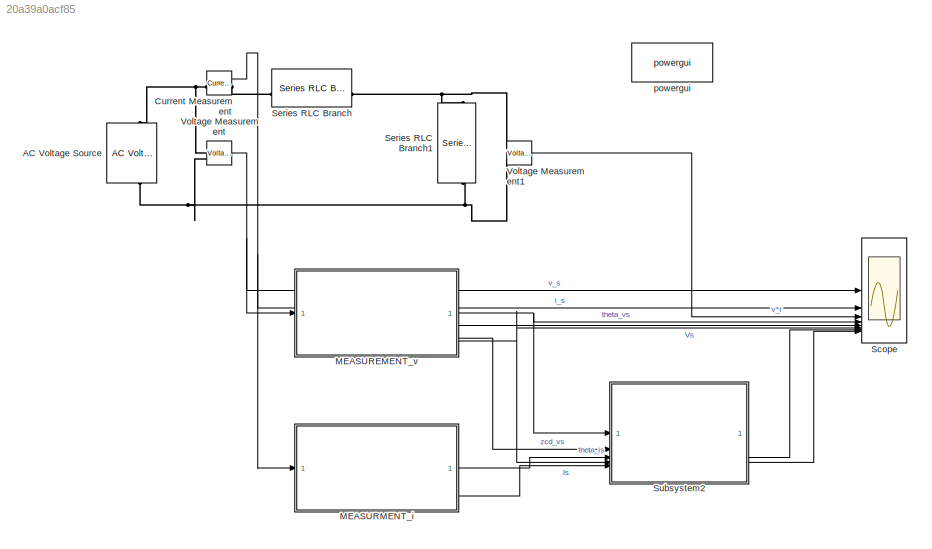
MODEL slx_20a39a0acf85
KIND model
CONFIG AbsTol = auto
CONFIG EnableMultiTasking = off
CONFIG FixedStep = auto
CONFIG MaxStep = auto
CONFIG MinStep = auto
CONFIG RelTol = 1e-3
CONFIG SampleTimeConstraint = Unconstrained
CONFIG SolverName = ode23t
CONFIG StartTime = 0.0
CONFIG StopTime = 0.08
BLOCK [Reference] AC Voltage Source  REF=spsACVoltageSourceLib/AC Voltage Source
  LibrarySourceBlock = sps_lib/Sources/AC Voltage Source
  SourceBlock = spsACVoltageSourceLib/AC Voltage Source
  SourceType = AC Voltage Source
BLOCK [Reference] Current Measurement  REF=spsCurrentMeasurementLib/Current Measurement
  LibrarySourceBlock = sps_lib/Sensors and Measurements/Current Measurement
  SourceBlock = spsCurrentMeasurementLib/Current Measurement
  SourceType = Current Measurement
  UserDataPersistent = on
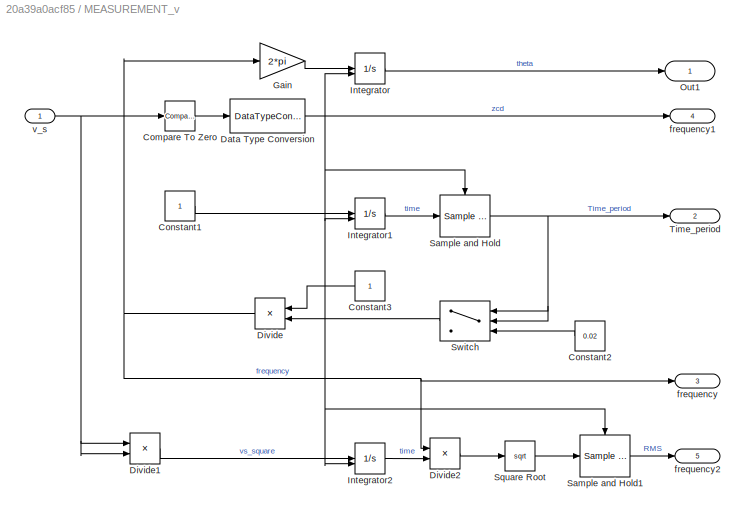
BLOCK [SubSystem] MEASUREMENT_v
BLOCK [Reference] MEASUREMENT_v/Compare To Zero  REF=simulink/Logic and Bit
Operations/Compare
To Zero
  SourceBlock = simulink/Logic and Bit\nOperations/Compare\nTo Zero
  SourceType = Compare To Zero
BLOCK [Constant] MEASUREMENT_v/Constant1
BLOCK [Constant] MEASUREMENT_v/Constant2
  NameLocation = top
  Value = 0.02
BLOCK [Constant] MEASUREMENT_v/Constant3
  NameLocation = top
BLOCK [DataTypeConversion] MEASUREMENT_v/Data Type Conversion
  RndMeth = Floor
  SaturateOnIntegerOverflow = off
BLOCK [Product] MEASUREMENT_v/Divide
  Inputs = */
  NameLocation = top
BLOCK [Product] MEASUREMENT_v/Divide1
  Inputs = **
BLOCK [Product] MEASUREMENT_v/Divide2
  Inputs = **
BLOCK [Gain] MEASUREMENT_v/Gain
  Gain = 2*pi
BLOCK [Integrator] MEASUREMENT_v/Integrator
  ExternalReset = rising
BLOCK [Integrator] MEASUREMENT_v/Integrator1
  ExternalReset = rising
BLOCK [Integrator] MEASUREMENT_v/Integrator2
  ExternalReset = rising
BLOCK [Outport] MEASUREMENT_v/Out1
  IconDisplay = Port number and signal name
BLOCK [Reference] MEASUREMENT_v/Sample and Hold  REF=dspsigops/Sample
and Hold
  LibrarySourceBlock = dsphdlsupportsigops/Sample\nand Hold
  SourceBlock = dspsigops/Sample\nand Hold
  SourceType = Sample and Hold
BLOCK [Reference] MEASUREMENT_v/Sample and Hold1  REF=dspsigops/Sample
and Hold
  LibrarySourceBlock = dsphdlsupportsigops/Sample\nand Hold
  SourceBlock = dspsigops/Sample\nand Hold
  SourceType = Sample and Hold
BLOCK [Sqrt] MEASUREMENT_v/Square Root
BLOCK [Switch] MEASUREMENT_v/Switch
  Criteria = u2 > Threshold
  InputSameDT = off
  NameLocation = top
  SaturateOnIntegerOverflow = off
BLOCK [Outport] MEASUREMENT_v/Time_period
  IconDisplay = Port number and signal name
  Port = 2
BLOCK [Outport] MEASUREMENT_v/frequency
  IconDisplay = Port number and signal name
  Port = 3
BLOCK [Outport] MEASUREMENT_v/frequency1
  IconDisplay = Port number and signal name
  Port = 4
BLOCK [Outport] MEASUREMENT_v/frequency2
  IconDisplay = Port number and signal name
  Port = 5
BLOCK [Inport] MEASUREMENT_v/v_s
  IconDisplay = Port number and signal name
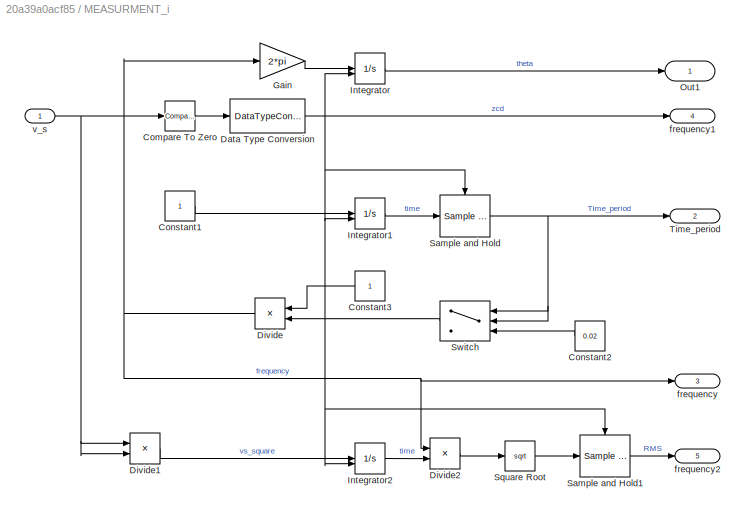
BLOCK [SubSystem] MEASURMENT_i
BLOCK [Reference] MEASURMENT_i/Compare To Zero  REF=simulink/Logic and Bit
Operations/Compare
To Zero
  SourceBlock = simulink/Logic and Bit\nOperations/Compare\nTo Zero
  SourceType = Compare To Zero
BLOCK [Constant] MEASURMENT_i/Constant1
BLOCK [Constant] MEASURMENT_i/Constant2
  NameLocation = top
  Value = 0.02
BLOCK [Constant] MEASURMENT_i/Constant3
  NameLocation = top
BLOCK [DataTypeConversion] MEASURMENT_i/Data Type Conversion
  RndMeth = Floor
  SaturateOnIntegerOverflow = off
BLOCK [Product] MEASURMENT_i/Divide
  Inputs = */
  NameLocation = top
BLOCK [Product] MEASURMENT_i/Divide1
  Inputs = **
BLOCK [Product] MEASURMENT_i/Divide2
  Inputs = **
BLOCK [Gain] MEASURMENT_i/Gain
  Gain = 2*pi
BLOCK [Integrator] MEASURMENT_i/Integrator
  ExternalReset = rising
BLOCK [Integrator] MEASURMENT_i/Integrator1
  ExternalReset = rising
BLOCK [Integrator] MEASURMENT_i/Integrator2
  ExternalReset = rising
BLOCK [Outport] MEASURMENT_i/Out1
  IconDisplay = Port number and signal name
BLOCK [Reference] MEASURMENT_i/Sample and Hold  REF=dspsigops/Sample
and Hold
  LibrarySourceBlock = dsphdlsupportsigops/Sample\nand Hold
  SourceBlock = dspsigops/Sample\nand Hold
  SourceType = Sample and Hold
BLOCK [Reference] MEASURMENT_i/Sample and Hold1  REF=dspsigops/Sample
and Hold
  LibrarySourceBlock = dsphdlsupportsigops/Sample\nand Hold
  SourceBlock = dspsigops/Sample\nand Hold
  SourceType = Sample and Hold
BLOCK [Sqrt] MEASURMENT_i/Square Root
BLOCK [Switch] MEASURMENT_i/Switch
  Criteria = u2 > Threshold
  InputSameDT = off
  NameLocation = top
  SaturateOnIntegerOverflow = off
BLOCK [Outport] MEASURMENT_i/Time_period
  IconDisplay = Port number and signal name
  Port = 2
BLOCK [Outport] MEASURMENT_i/frequency
  IconDisplay = Port number and signal name
  Port = 3
BLOCK [Outport] MEASURMENT_i/frequency1
  IconDisplay = Port number and signal name
  Port = 4
BLOCK [Outport] MEASURMENT_i/frequency2
  IconDisplay = Port number and signal name
  Port = 5
BLOCK [Inport] MEASURMENT_i/v_s
  IconDisplay = Port number and signal name
BLOCK [Scope] Scope
  Floating = off
  NumInputPorts = 8
  ScopeSpecificationString = Simulink.scopes.TimeScopeBlockCfg('CurrentConfiguration', extmgr.ConfigurationSet(extmgr.Configuration('Core','General UI',true),extmgr.Configuration('Core','Source UI',true),extmgr.Configuration('Sources','WiredSimulink',true),extmgr.Configuration('Visuals','Time Domain',true,'SerializedDisplays',{struct('MinYLimReal','-406.32061','MaxYLimReal','406.54283','YLabelReal','','MinYLimMag',' 0.00000',...<+6278ch>
BLOCK [Reference] Series RLC Branch  REF=spsSeriesRLCBranchLib/Series RLC Branch
  LibrarySourceBlock = sps_lib/Passives/Series RLC Branch
  SourceBlock = spsSeriesRLCBranchLib/Series RLC Branch
  SourceType = Series RLC Branch
BLOCK [Reference] Series RLC Branch1  REF=spsSeriesRLCBranchLib/Series RLC Branch
  LibrarySourceBlock = sps_lib/Passives/Series RLC Branch
  NameLocation = left
  SourceBlock = spsSeriesRLCBranchLib/Series RLC Branch
  SourceType = Series RLC Branch
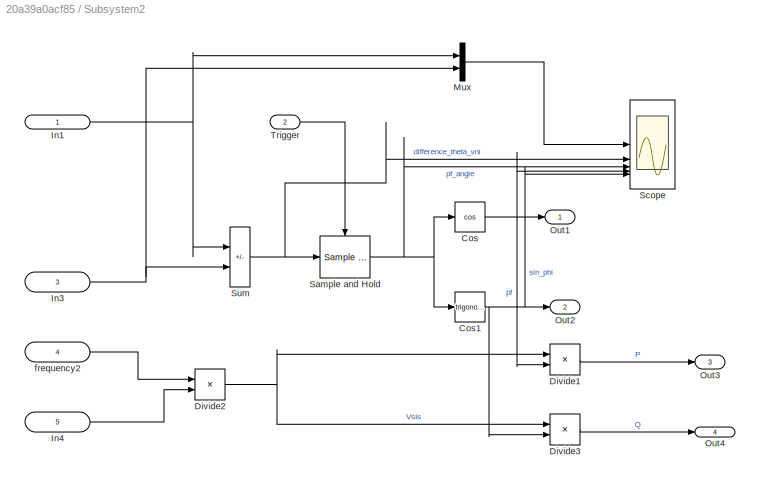
BLOCK [SubSystem] Subsystem2
BLOCK [Trigonometry] Subsystem2/Cos
  Operator = cos
BLOCK [Trigonometry] Subsystem2/Cos1
BLOCK [Product] Subsystem2/Divide1
  Inputs = **
BLOCK [Product] Subsystem2/Divide2
  Inputs = **
BLOCK [Product] Subsystem2/Divide3
  Inputs = **
BLOCK [Inport] Subsystem2/In1
  IconDisplay = Port number and signal name
BLOCK [Inport] Subsystem2/In3
  IconDisplay = Port number and signal name
  Port = 3
BLOCK [Inport] Subsystem2/In4
  IconDisplay = Port number and signal name
  Port = 5
BLOCK [Mux] Subsystem2/Mux
  DisplayOption = bar
  Inputs = 2
BLOCK [Outport] Subsystem2/Out1
  IconDisplay = Port number and signal name
BLOCK [Outport] Subsystem2/Out2
  IconDisplay = Port number and signal name
  Port = 2
BLOCK [Outport] Subsystem2/Out3
  IconDisplay = Port number and signal name
  Port = 3
BLOCK [Outport] Subsystem2/Out4
  IconDisplay = Port number and signal name
  Port = 4
BLOCK [Reference] Subsystem2/Sample and Hold  REF=dspsigops/Sample
and Hold
  LibrarySourceBlock = dsphdlsupportsigops/Sample\nand Hold
  SourceBlock = dspsigops/Sample\nand Hold
  SourceType = Sample and Hold
BLOCK [Scope] Subsystem2/Scope
  Floating = off
  NumInputPorts = 6
  ScopeSpecificationString = Simulink.scopes.TimeScopeBlockCfg('CurrentConfiguration', extmgr.ConfigurationSet(extmgr.Configuration('Core','General UI',true),extmgr.Configuration('Core','Source UI',true),extmgr.Configuration('Sources','WiredSimulink',true,'DataLoggingVariableName','ScopeData1'),extmgr.Configuration('Visuals','Time Domain',true,'SerializedDisplays',{struct('MinYLimReal','-3.40949','MaxYLimReal','30.6854','YLab...<+4888ch>
BLOCK [Sum] Subsystem2/Sum
  IconShape = rectangular
  Inputs = |+-
BLOCK [Inport] Subsystem2/Trigger
  IconDisplay = Port number and signal name
  Port = 2
BLOCK [Inport] Subsystem2/frequency2
  IconDisplay = Port number and signal name
  Port = 4
BLOCK [Reference] Voltage Measurement  REF=spsVoltageMeasurementLib/Voltage Measurement
  LibrarySourceBlock = sps_lib/Sensors and Measurements/Voltage Measurement
  SourceBlock = spsVoltageMeasurementLib/Voltage Measurement
  SourceType = Voltage Measurement
  UserDataPersistent = on
BLOCK [Reference] Voltage Measurement1  REF=spsVoltageMeasurementLib/Voltage Measurement
  LibrarySourceBlock = sps_lib/Sensors and Measurements/Voltage Measurement
  SourceBlock = spsVoltageMeasurementLib/Voltage Measurement
  SourceType = Voltage Measurement
  UserDataPersistent = on
BLOCK [Reference] powergui  REF=spspowerguiLib/powergui
  LibrarySourceBlock = sps_lib/powergui
  Priority = 1
  SourceBlock = spspowerguiLib/powergui
  SourceType = PSB option menu block
NET Current Measurement:1 -> MEASURMENT_i:1, Scope:2
LINE MEASUREMENT_v/Compare To Zero:1 -> MEASUREMENT_v/Data Type Conversion:1
LINE MEASUREMENT_v/Constant1:1 -> MEASUREMENT_v/Integrator1:1
LINE MEASUREMENT_v/Constant2:1 -> MEASUREMENT_v/Switch:3
LINE MEASUREMENT_v/Constant3:1 -> MEASUREMENT_v/Divide:1
NET MEASUREMENT_v/Data Type Conversion:1 -> MEASUREMENT_v/Integrator1:2, MEASUREMENT_v/Integrator2:2, MEASUREMENT_v/Integrator:2, MEASUREMENT_v/Sample and Hold1:trigger, MEASUREMENT_v/Sample and Hold:trigger, MEASUREMENT_v/frequency1:1
LINE MEASUREMENT_v/Divide1:1 -> MEASUREMENT_v/Integrator2:1
LINE MEASUREMENT_v/Divide2:1 -> MEASUREMENT_v/Square Root:1
NET MEASUREMENT_v/Divide:1 -> MEASUREMENT_v/Divide2:1, MEASUREMENT_v/Gain:1, MEASUREMENT_v/frequency:1
LINE MEASUREMENT_v/Gain:1 -> MEASUREMENT_v/Integrator:1
LINE MEASUREMENT_v/Integrator1:1 -> MEASUREMENT_v/Sample and Hold:1
LINE MEASUREMENT_v/Integrator2:1 -> MEASUREMENT_v/Divide2:2
LINE MEASUREMENT_v/Integrator:1 -> MEASUREMENT_v/Out1:1
LINE MEASUREMENT_v/Sample and Hold1:1 -> MEASUREMENT_v/frequency2:1
NET MEASUREMENT_v/Sample and Hold:1 -> MEASUREMENT_v/Switch:1, MEASUREMENT_v/Switch:2, MEASUREMENT_v/Time_period:1
LINE MEASUREMENT_v/Square Root:1 -> MEASUREMENT_v/Sample and Hold1:1
LINE MEASUREMENT_v/Switch:1 -> MEASUREMENT_v/Divide:2
NET MEASUREMENT_v/v_s:1 -> MEASUREMENT_v/Compare To Zero:1, MEASUREMENT_v/Divide1:1, MEASUREMENT_v/Divide1:2
NET MEASUREMENT_v:1 -> Scope:4, Subsystem2:1
LINE MEASUREMENT_v:2 -> Scope:5
LINE MEASUREMENT_v:4 -> Subsystem2:2
NET MEASUREMENT_v:5 -> Scope:6, Subsystem2:4
LINE MEASURMENT_i/Compare To Zero:1 -> MEASURMENT_i/Data Type Conversion:1
LINE MEASURMENT_i/Constant1:1 -> MEASURMENT_i/Integrator1:1
LINE MEASURMENT_i/Constant2:1 -> MEASURMENT_i/Switch:3
LINE MEASURMENT_i/Constant3:1 -> MEASURMENT_i/Divide:1
NET MEASURMENT_i/Data Type Conversion:1 -> MEASURMENT_i/Integrator1:2, MEASURMENT_i/Integrator2:2, MEASURMENT_i/Integrator:2, MEASURMENT_i/Sample and Hold1:trigger, MEASURMENT_i/Sample and Hold:trigger, MEASURMENT_i/frequency1:1
LINE MEASURMENT_i/Divide1:1 -> MEASURMENT_i/Integrator2:1
LINE MEASURMENT_i/Divide2:1 -> MEASURMENT_i/Square Root:1
NET MEASURMENT_i/Divide:1 -> MEASURMENT_i/Divide2:1, MEASURMENT_i/Gain:1, MEASURMENT_i/frequency:1
LINE MEASURMENT_i/Gain:1 -> MEASURMENT_i/Integrator:1
LINE MEASURMENT_i/Integrator1:1 -> MEASURMENT_i/Sample and Hold:1
LINE MEASURMENT_i/Integrator2:1 -> MEASURMENT_i/Divide2:2
LINE MEASURMENT_i/Integrator:1 -> MEASURMENT_i/Out1:1
LINE MEASURMENT_i/Sample and Hold1:1 -> MEASURMENT_i/frequency2:1
NET MEASURMENT_i/Sample and Hold:1 -> MEASURMENT_i/Switch:1, MEASURMENT_i/Switch:2, MEASURMENT_i/Time_period:1
LINE MEASURMENT_i/Square Root:1 -> MEASURMENT_i/Sample and Hold1:1
LINE MEASURMENT_i/Switch:1 -> MEASURMENT_i/Divide:2
NET MEASURMENT_i/v_s:1 -> MEASURMENT_i/Compare To Zero:1, MEASURMENT_i/Divide1:1, MEASURMENT_i/Divide1:2
LINE MEASURMENT_i:1 -> Subsystem2:3
LINE MEASURMENT_i:5 -> Subsystem2:5
NET Subsystem2/Cos1:1 -> Subsystem2/Divide3:2, Subsystem2/Out2:1, Subsystem2/Scope:5
NET Subsystem2/Cos:1 -> Subsystem2/Divide1:2, Subsystem2/Out1:1, Subsystem2/Scope:4
LINE Subsystem2/Divide1:1 -> Subsystem2/Out3:1
NET Subsystem2/Divide2:1 -> Subsystem2/Divide1:1, Subsystem2/Divide3:1
LINE Subsystem2/Divide3:1 -> Subsystem2/Out4:1
NET Subsystem2/In1:1 -> Subsystem2/Mux:1, Subsystem2/Sum:1
NET Subsystem2/In3:1 -> Subsystem2/Mux:2, Subsystem2/Sum:2
LINE Subsystem2/In4:1 -> Subsystem2/Divide2:2
LINE Subsystem2/Mux:1 -> Subsystem2/Scope:1
NET Subsystem2/Sample and Hold:1 -> Subsystem2/Cos1:1, Subsystem2/Cos:1, Subsystem2/Scope:3
NET Subsystem2/Sum:1 -> Subsystem2/Sample and Hold:1, Subsystem2/Scope:2
LINE Subsystem2/Trigger:1 -> Subsystem2/Sample and Hold:trigger
LINE Subsystem2/frequency2:1 -> Subsystem2/Divide2:1
LINE Subsystem2:3 -> Scope:7
LINE Subsystem2:4 -> Scope:8
LINE Voltage Measurement1:1 -> Scope:3
NET Voltage Measurement:1 -> MEASUREMENT_v:1, Scope:1
PNET net1: AC Voltage Source:LConn1 -- Series RLC Branch1:RConn1 -- Voltage Measurement1:LConn2 -- Voltage Measurement:LConn2
PNET net2: AC Voltage Source:RConn1 -- Current Measurement:LConn1 -- Voltage Measurement:LConn1
PLINE Current Measurement:RConn1 -- Series RLC Branch:LConn1
PNET net3: Series RLC Branch1:LConn1 -- Series RLC Branch:RConn1 -- Voltage Measurement1:LConn1
note: NET lines group one-source signal fan-out (src -> all destinations, sorted); 1:1 wires keep LINE; PNET lines group multi-terminal physical nets as a canonical sorted terminal list (undirected conserving connections); 2-terminal nets keep the pairwise PLINE form
